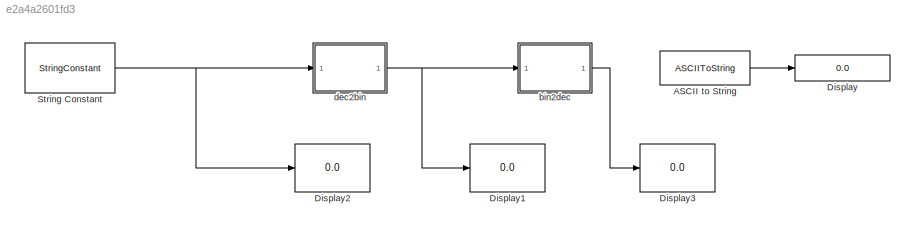
MODEL slx_e2a4a2601fd3
KIND model
CONFIG AbsTol = auto
CONFIG EnableMultiTasking = off
CONFIG FixedStep = auto
CONFIG MaxStep = auto
CONFIG MinStep = auto
CONFIG RelTol = 1e-3
CONFIG SampleTimeConstraint = Unconstrained
CONFIG Solver = VariableStepAuto
CONFIG SolverName = VariableStepAuto
CONFIG StartTime = 0.0
CONFIG StopTime = 10.0
BLOCK [ASCIIToString] ASCII to String
  Commented = on
BLOCK [Display] Display
  Commented = on
  Decimation = 1
  Ports = [1]
BLOCK [Display] Display1
  Decimation = 1
  Ports = [1]
BLOCK [Display] Display2
  Decimation = 1
  Ports = [1]
BLOCK [Display] Display3
  Commented = on
  Decimation = 1
  Ports = [1]
BLOCK [StringConstant] String Constant
  String = "ab"
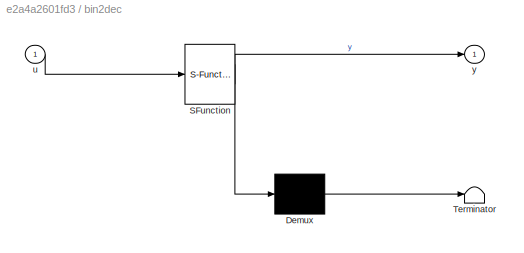
BLOCK [SubSystem] bin2dec
  Commented = on
  ErrorFcn = Stateflow.Translate.translate
  PermitHierarchicalResolution = ExplicitOnly
  Ports = [1, 1]
  RequestExecContextInheritance = off
  SFBlockType = MATLAB Function
  TreatAsAtomicUnit = on
BLOCK [Demux] bin2dec/ Demux 
  Outputs = 1
  Ports = [1, 1]
BLOCK [S-Function] bin2dec/ SFunction 
  EnableBusSupport = on
  FunctionName = sf_sfun
  PortCounts = [1 2]
  Ports = [1, 2]
  SFcnIsStateOwnerBlock = off
  SFunctionDeploymentMode = off
  Tag = Stateflow S-Function failed_string_test 1
BLOCK [Terminator] bin2dec/ Terminator 
BLOCK [Inport] bin2dec/u
  IconDisplay = Port number
BLOCK [Outport] bin2dec/y
  IconDisplay = Port number
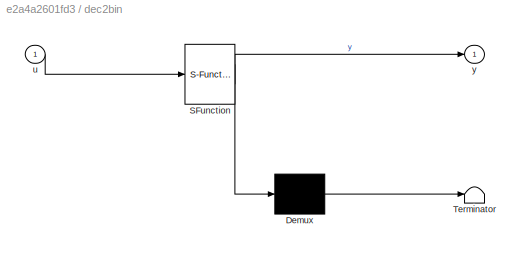
BLOCK [SubSystem] dec2bin 
  ErrorFcn = Stateflow.Translate.translate
  PermitHierarchicalResolution = ExplicitOnly
  Ports = [1, 1]
  RequestExecContextInheritance = off
  SFBlockType = MATLAB Function
  TreatAsAtomicUnit = on
BLOCK [Demux] dec2bin / Demux 
  Outputs = 1
  Ports = [1, 1]
BLOCK [S-Function] dec2bin / SFunction 
  EnableBusSupport = on
  FunctionName = sf_sfun
  PortCounts = [1 2]
  Ports = [1, 2]
  SFcnIsStateOwnerBlock = off
  SFunctionDeploymentMode = off
  Tag = Stateflow S-Function failed_string_test 2
BLOCK [Terminator] dec2bin / Terminator 
BLOCK [Inport] dec2bin /u
  IconDisplay = Port number
BLOCK [Outport] dec2bin /y
  IconDisplay = Port number
LINE ASCII to String:1 -> Display:1
NET String Constant:1 -> Display2:1, dec2bin :1
LINE bin2dec:1 -> Display3:1
NET dec2bin :1 -> Display1:1, bin2dec:1
note: NET lines group one-source signal fan-out (src -> all destinations, sorted); 1:1 wires keep LINE
CHART bin2dec states=1 transitions=1
  STATE_LABEL 'eML_blk_kernel()'
  STATE_LABEL 'SCRIPT:\nfunction y = fcn(u)\n\ny = bin2dec(char(u));\n'
CHART dec2bin
 states=1 transitions=1
  STATE_LABEL 'eML_blk_kernel()'
  STATE_LABEL 'SCRIPT:\nfunction y = fcn(u)\n\ny = dec2bin(u);\n'
